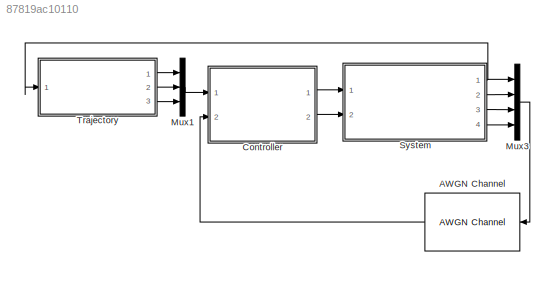
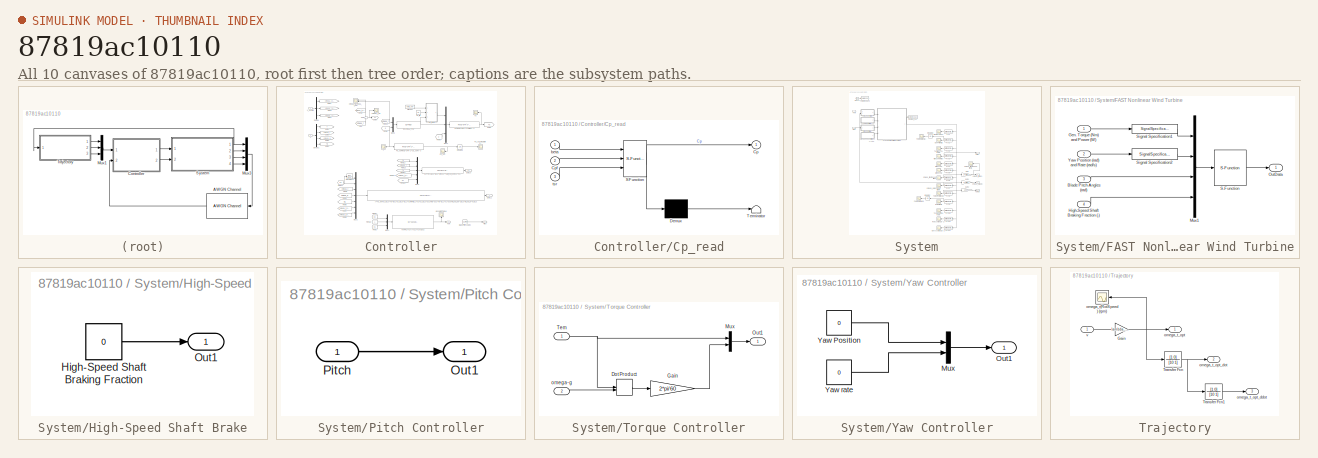
[diagram: thumbnail index - all 10 canvases of the model, root first then tree order]
MODEL slx_87819ac10110
KIND model
CONFIG AbsTol = auto
CONFIG FixedStep = DT
CONFIG MaxStep = DT
CONFIG MinStep = auto
CONFIG RelTol = 1e-3
CONFIG SampleTimeConstraint = Unconstrained
CONFIG Solver = ode4
CONFIG SolverMode = Auto
CONFIG SolverName = ode4
CONFIG StartTime = 0.0
CONFIG StopTime = 600
BLOCK [Reference] AWGN Channel  REF=commchan3/AWGN
Channel
  Ports = [1, 1]
  SourceBlock = commchan3/AWGN\nChannel
  SourceType = AWGN Channel
  UserDataPersistent = on
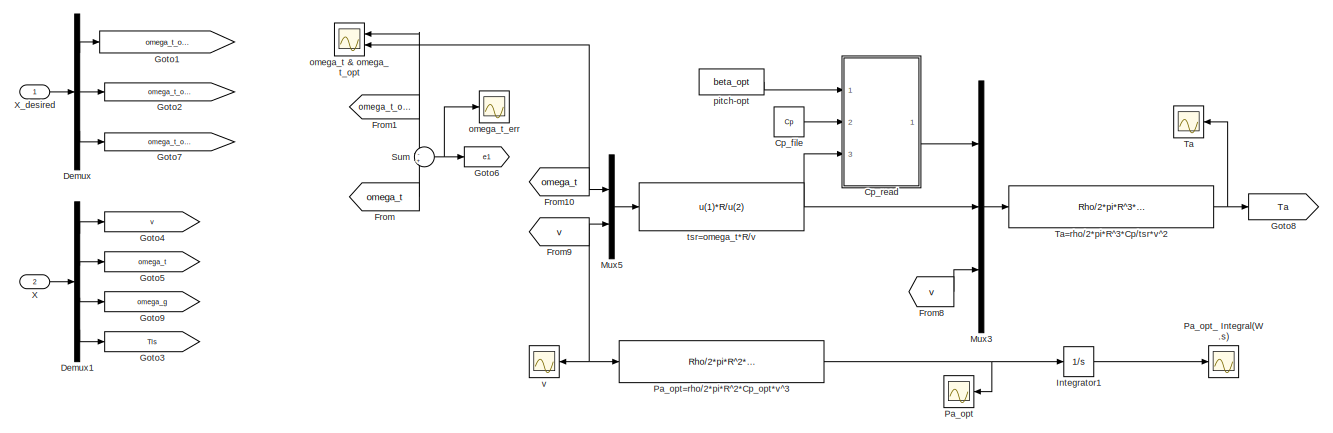
[diagram: Controller - part 1/2, full width, top band]
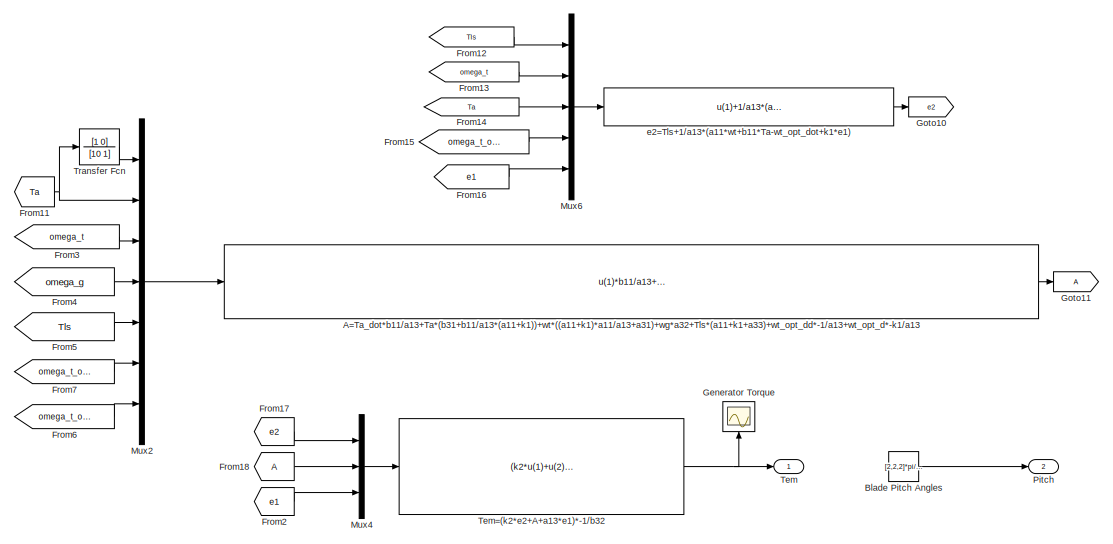
[diagram: Controller - part 2/2, full width, bottom band]
BLOCK [SubSystem] Controller
  Ports = [2, 2]
  RequestExecContextInheritance = off
  Variant = off
BLOCK [Fcn] Controller/A=Ta_dot*b11//a13+Ta*(b31+b11//a13*(a11+k1))+wt*((a11+k1)*a11//a13+a31)+wg*a32+Tls*(a11+k1+a33)+wt_opt_dd*-1//a13+wt_opt_d*-k1//a13
  Expr = u(1)*b11/a13+u(2)*(b31+b11/a13*(a11+k1))+u(3)*((a11+k1)*a11/a13+a31)+u(4)*a32+u(5)*(a11+k1+a33)-1/a13*u(6)-k1/a13*u(7)
BLOCK [Constant] Controller/Blade Pitch Angles
  Value = [2,2,2]*pi/180
BLOCK [Constant] Controller/Cp_file
  Value = Cp
BLOCK [SubSystem] Controller/Cp_read
  ErrorFcn = Stateflow.Translate.translate
  PermitHierarchicalResolution = ExplicitOnly
  Ports = [3, 1]
  RequestExecContextInheritance = off
  SFBlockType = MATLAB Function
  TreatAsAtomicUnit = on
  Variant = off
BLOCK [Demux] Controller/Cp_read/ Demux 
  Outputs = 1
  Ports = [1, 1]
BLOCK [S-Function] Controller/Cp_read/ SFunction 
  EnableBusSupport = on
  FunctionName = sf_sfun
  PortCounts = [3 2]
  Ports = [3, 2]
  SFunctionDeploymentMode = off
  Tag = Stateflow S-Function openloop 1
BLOCK [Terminator] Controller/Cp_read/ Terminator 
BLOCK [Outport] Controller/Cp_read/Cp
  IconDisplay = Port number
BLOCK [Inport] Controller/Cp_read/Cpf
  IconDisplay = Port number
  Port = 2
BLOCK [Inport] Controller/Cp_read/beta
  IconDisplay = Port number
BLOCK [Inport] Controller/Cp_read/tsr
  IconDisplay = Port number
  Port = 3
BLOCK [Demux] Controller/Demux
  DisplayOption = bar
  Outputs = 3
  Ports = [1, 3]
BLOCK [Demux] Controller/Demux1
  DisplayOption = bar
  Ports = [1, 4]
BLOCK [From] Controller/From
  GotoTag = omega_t
BLOCK [From] Controller/From1
  GotoTag = omega_t_opt
BLOCK [From] Controller/From10
  GotoTag = omega_t
BLOCK [From] Controller/From11
  GotoTag = Ta
BLOCK [From] Controller/From12
  GotoTag = Tls
BLOCK [From] Controller/From13
  GotoTag = omega_t
BLOCK [From] Controller/From14
  GotoTag = Ta
BLOCK [From] Controller/From15
  GotoTag = omega_t_opt_dot
BLOCK [From] Controller/From16
  GotoTag = e1
BLOCK [From] Controller/From17
  GotoTag = e2
BLOCK [From] Controller/From18
BLOCK [From] Controller/From2
  GotoTag = e1
BLOCK [From] Controller/From3
  GotoTag = omega_t
BLOCK [From] Controller/From4
  GotoTag = omega_g
BLOCK [From] Controller/From5
  GotoTag = Tls
BLOCK [From] Controller/From6
  GotoTag = omega_t_opt_dot
BLOCK [From] Controller/From7
  GotoTag = omega_t_opt_ddot
BLOCK [From] Controller/From8
  GotoTag = v
BLOCK [From] Controller/From9
  GotoTag = v
BLOCK [Scope] Controller/Generator Torque
  Ports = [1]
  ScopeSpecificationString = Simulink.scopes.TimeScopeBlockCfg('CurrentConfiguration', extmgr.ConfigurationSet(extmgr.Configuration('Core','General UI',true,'FigureColor',[1 1 1]),extmgr.Configuration('Core','Source UI',true),extmgr.Configuration('Sources','WiredSimulink',true,'DataLoggingSaveFormat','StructureWithTime','DataLoggingDecimation','1','DataLoggingDecimateData',true,'DataLoggingVariableName','ScopeData11'),extmgr....<+1909ch>
BLOCK [Goto] Controller/Goto1
  GotoTag = omega_t_opt
BLOCK [Goto] Controller/Goto10
  GotoTag = e2
BLOCK [Goto] Controller/Goto11
BLOCK [Goto] Controller/Goto2
  GotoTag = omega_t_opt_dot
BLOCK [Goto] Controller/Goto3
  GotoTag = Tls
BLOCK [Goto] Controller/Goto4
  GotoTag = v
BLOCK [Goto] Controller/Goto5
  GotoTag = omega_t
BLOCK [Goto] Controller/Goto6
  GotoTag = e1
BLOCK [Goto] Controller/Goto7
  GotoTag = omega_t_opt_ddot
BLOCK [Goto] Controller/Goto8
  GotoTag = Ta
BLOCK [Goto] Controller/Goto9
  GotoTag = omega_g
BLOCK [Integrator] Controller/Integrator1
  Ports = [1, 1]
BLOCK [Mux] Controller/Mux2
  DisplayOption = bar
  Inputs = 7
  Ports = [7, 1]
BLOCK [Mux] Controller/Mux3
  DisplayOption = bar
  Inputs = 3
  Ports = [3, 1]
BLOCK [Mux] Controller/Mux4
  DisplayOption = bar
  Inputs = 3
  Ports = [3, 1]
BLOCK [Mux] Controller/Mux5
  DisplayOption = bar
  Inputs = 2
  Ports = [2, 1]
BLOCK [Mux] Controller/Mux6
  DisplayOption = bar
  Inputs = 5
  Ports = [5, 1]
BLOCK [Scope] Controller/Pa_opt
  Ports = [1]
  ScopeSpecificationString = Simulink.scopes.TimeScopeBlockCfg('CurrentConfiguration', extmgr.ConfigurationSet(extmgr.Configuration('Core','General UI',true,'FigureColor',[1 1 1]),extmgr.Configuration('Core','Source UI',true),extmgr.Configuration('Sources','WiredSimulink',true,'DataLoggingSaveFormat','StructureWithTime','DataLoggingDecimation','1','DataLoggingDecimateData',true,'DataLoggingVariableName','ScopeData6'),extmgr.C...<+1899ch>
BLOCK [Fcn] Controller/Pa_opt=rho//2*pi*R^2*Cp_opt*v^3
  Expr = Rho/2*pi*R^2*0.49*u(1)^3
BLOCK [Scope] Controller/Pa_opt_ Integral(W.s)
  Ports = [1]
  ScopeSpecificationString = Simulink.scopes.TimeScopeBlockCfg('CurrentConfiguration', extmgr.ConfigurationSet(extmgr.Configuration('Core','General UI',true,'FigureColor',[1 1 1]),extmgr.Configuration('Core','Source UI',true),extmgr.Configuration('Sources','WiredSimulink',true,'DataLoggingSaveFormat','StructureWithTime','DataLoggingDecimation','1','DataLoggingDecimateData',true,'DataLoggingVariableName','ScopeData5'),extmgr.C...<+2200ch>
BLOCK [Outport] Controller/Pitch
  IconDisplay = Port number
  Port = 2
BLOCK [Sum] Controller/Sum
  IconShape = round
  InputSameDT = off
  Inputs = -+
  OutDataTypeStr = Inherit: Inherit via internal rule
  Ports = [2, 1]
  SaturateOnIntegerOverflow = off
BLOCK [Scope] Controller/Ta
  Ports = [1]
  ScopeSpecificationString = Simulink.scopes.TimeScopeBlockCfg('CurrentConfiguration', extmgr.ConfigurationSet(extmgr.Configuration('Core','General UI',true),extmgr.Configuration('Core','Source UI',true),extmgr.Configuration('Sources','WiredSimulink',true,'DataLoggingSaveFormat','StructureWithTime','DataLoggingDecimation','1','DataLoggingDecimateData',true,'DataLoggingVariableName','ScopeData10'),extmgr.Configuration('Visuals...<+2061ch>
BLOCK [Fcn] Controller/Ta=rho//2*pi*R^3*Cp//tsr*v^2
  Expr = Rho/2*pi*R^3*u(1)/u(2)*u(3)^2
BLOCK [Outport] Controller/Tem
  IconDisplay = Port number
BLOCK [Fcn] Controller/Tem=(k2*e2+A+a13*e1)*-1//b32
  Expr = (k2*u(1)+u(2)+a13*u(3))*-1/b32
BLOCK [TransferFcn] Controller/Transfer Fcn
  Denominator = [10 1]
  Numerator = [1 0]
BLOCK [Inport] Controller/X
  IconDisplay = Port number
  Port = 2
BLOCK [Inport] Controller/X_desired
  IconDisplay = Port number
BLOCK [Fcn] Controller/e2=Tls+1//a13*(a11*wt+b11*Ta-wt_opt_dot+k1*e1)
  Expr = u(1)+1/a13*(a11*u(2)+b11*u(3)-u(4)+k1*u(5))
BLOCK [Scope] Controller/omega_t & omega_t_opt
  NumInputPorts = 2
  Ports = [2]
  ScopeSpecificationString = Simulink.scopes.TimeScopeBlockCfg('CurrentConfiguration', extmgr.ConfigurationSet(extmgr.Configuration('Core','General UI',true,'FigureColor',[1 1 1]),extmgr.Configuration('Core','Source UI',true),extmgr.Configuration('Sources','WiredSimulink',true,'DataLoggingVariableName','ScopeData2','DataLoggingSaveFormat','Array','DataLoggingDecimation','1','DataLoggingDecimateData',true),extmgr.Configuration...<+1753ch>
BLOCK [Scope] Controller/omega_t_err
  Ports = [1]
  ScopeSpecificationString = Simulink.scopes.TimeScopeBlockCfg('CurrentConfiguration', extmgr.ConfigurationSet(extmgr.Configuration('Core','General UI',true,'FigureColor',[1 1 1]),extmgr.Configuration('Core','Source UI',true),extmgr.Configuration('Sources','WiredSimulink',true,'DataLoggingSaveFormat','StructureWithTime','DataLoggingDecimation','1','DataLoggingDecimateData',true,'DataLoggingVariableName','ScopeData3'),extmgr.C...<+2123ch>
BLOCK [Constant] Controller/pitch-opt
  Value = beta_opt
BLOCK [Fcn] Controller/tsr=omega_t*R//v
  Expr = u(1)*R/u(2)
BLOCK [Scope] Controller/v
  Ports = [1]
  ScopeSpecificationString = Simulink.scopes.TimeScopeBlockCfg('CurrentConfiguration', extmgr.ConfigurationSet(extmgr.Configuration('Core','General UI',true,'FigureColor',[1 1 1]),extmgr.Configuration('Core','Source UI',true),extmgr.Configuration('Sources','WiredSimulink',true,'DataLoggingSaveFormat','StructureWithTime','DataLoggingDecimation','1','DataLoggingDecimateData',true,'DataLoggingVariableName','ScopeData2'),extmgr.C...<+1814ch>
BLOCK [Mux] Mux1
  DisplayOption = bar
  Inputs = 3
  Ports = [3, 1]
BLOCK [Mux] Mux3
  DisplayOption = bar
  Ports = [4, 1]
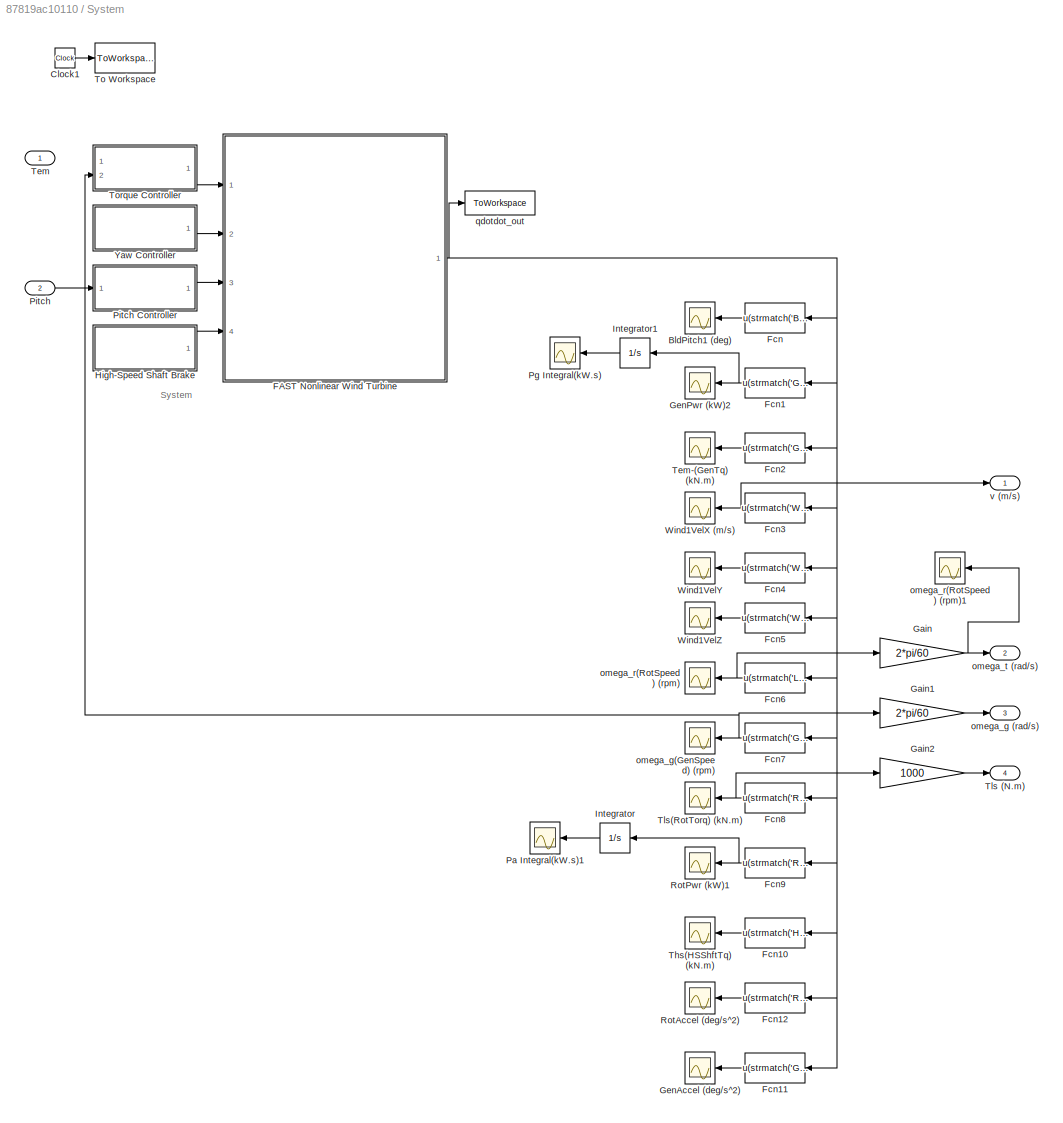
BLOCK [SubSystem] System
  Ports = [2, 4]
  RequestExecContextInheritance = off
  Variant = off
BLOCK [Scope] System/BldPitch1 (deg)
  Ports = [1]
  ScopeSpecificationString = Simulink.scopes.TimeScopeBlockCfg('CurrentConfiguration', extmgr.ConfigurationSet(extmgr.Configuration('Core','General UI',true,'FigureColor',[1 1 1]),extmgr.Configuration('Core','Source UI',true),extmgr.Configuration('Sources','WiredSimulink',true,'DataLoggingSaveFormat','StructureWithTime','DataLoggingDecimation','1','DataLoggingDecimateData',true,'DataLoggingVariableName','ScopeData5'),extmgr.C...<+2088ch>
BLOCK [Clock] System/Clock1
BLOCK [SubSystem] System/FAST Nonlinear Wind Turbine
  Ports = [4, 1]
  RequestExecContextInheritance = off
  Variant = off
BLOCK [Inport] System/FAST Nonlinear Wind Turbine/Blade Pitch Angles (rad)
  IconDisplay = Port number
  Port = 3
BLOCK [Inport] System/FAST Nonlinear Wind Turbine/Gen. Torque (Nm) and Power (W)
  IconDisplay = Port number
BLOCK [Inport] System/FAST Nonlinear Wind Turbine/High-Speed Shaft Braking Fraction (-)
  IconDisplay = Port number
  Port = 4
BLOCK [Mux] System/FAST Nonlinear Wind Turbine/Mux1
  DisplayOption = bar
  Ports = [4, 1]
BLOCK [Outport] System/FAST Nonlinear Wind Turbine/OutData
  IconDisplay = Port number
BLOCK [S-Function] System/FAST Nonlinear Wind Turbine/S-Function
  EnableBusSupport = off
  FunctionName = FAST_SFunc
  Parameters = FAST_InputFileName, TMax, 0
  Ports = [1, 1]
  SFunctionDeploymentMode = off
BLOCK [SignalSpecification] System/FAST Nonlinear Wind Turbine/Signal Specification1
  Dimensions = 2
  OutDataTypeStr = double
  SignalType = real
BLOCK [SignalSpecification] System/FAST Nonlinear Wind Turbine/Signal Specification2
  Dimensions = 2
  OutDataTypeStr = double
  SignalType = real
BLOCK [Inport] System/FAST Nonlinear Wind Turbine/Yaw Position (rad) and Rate (rad//s)
  IconDisplay = Port number
  Port = 2
BLOCK [Fcn] System/Fcn
  Expr = u(strmatch('BldPitch1',OutList))
BLOCK [Fcn] System/Fcn1
  Expr = u(strmatch('GenPwr',OutList))
BLOCK [Fcn] System/Fcn10
  Expr = u(strmatch('HSShftTq',OutList))
BLOCK [Fcn] System/Fcn11
  Expr = u(strmatch('GenAccel',OutList))
BLOCK [Fcn] System/Fcn12
  Expr = u(strmatch('RotAccel',OutList))
BLOCK [Fcn] System/Fcn2
  Expr = u(strmatch('GenTq',OutList))
BLOCK [Fcn] System/Fcn3
  Expr = u(strmatch('Wind1VelX',OutList))
BLOCK [Fcn] System/Fcn4
  Expr = u(strmatch('Wind1VelY',OutList))
BLOCK [Fcn] System/Fcn5
  Expr = u(strmatch('Wind1VelZ',OutList))
BLOCK [Fcn] System/Fcn6
  Expr = u(strmatch('LSSTipVxa',OutList))
BLOCK [Fcn] System/Fcn7
  Expr = u(strmatch('GenSpeed',OutList))
BLOCK [Fcn] System/Fcn8
  Expr = u(strmatch('RotTorq',OutList))
BLOCK [Fcn] System/Fcn9
  Expr = u(strmatch('RotPwr',OutList))
BLOCK [Gain] System/Gain
  Gain = 2*pi/60
  OutDataTypeStr = Inherit: Inherit via internal rule
  ParamDataTypeStr = Inherit: Inherit via internal rule
  SaturateOnIntegerOverflow = off
BLOCK [Gain] System/Gain1
  Gain = 2*pi/60
  OutDataTypeStr = Inherit: Inherit via internal rule
  ParamDataTypeStr = Inherit: Inherit via internal rule
  SaturateOnIntegerOverflow = off
BLOCK [Gain] System/Gain2
  Gain = 1000
  OutDataTypeStr = Inherit: Inherit via internal rule
  ParamDataTypeStr = Inherit: Inherit via internal rule
  SaturateOnIntegerOverflow = off
BLOCK [Scope] System/GenAccel (deg//s^2)
  Ports = [1]
  ScopeSpecificationString = Simulink.scopes.TimeScopeBlockCfg('CurrentConfiguration', extmgr.ConfigurationSet(extmgr.Configuration('Core','General UI',true),extmgr.Configuration('Core','Source UI',true),extmgr.Configuration('Sources','WiredSimulink',true,'DataLoggingSaveFormat','StructureWithTime','DataLoggingDecimation','1','DataLoggingDecimateData',true,'DataLoggingVariableName','ScopeData2'),extmgr.Configuration('Visuals'...<+1955ch>
BLOCK [Scope] System/GenPwr (kW)2
  Ports = [1]
  ScopeSpecificationString = Simulink.scopes.TimeScopeBlockCfg('CurrentConfiguration', extmgr.ConfigurationSet(extmgr.Configuration('Core','General UI',true,'FigureColor',[1 1 1]),extmgr.Configuration('Core','Source UI',true),extmgr.Configuration('Sources','WiredSimulink',true,'DataLoggingSaveFormat','StructureWithTime','DataLoggingDecimation','1','DataLoggingDecimateData',true,'DataLoggingVariableName','ScopeData7'),extmgr.C...<+1853ch>
BLOCK [SubSystem] System/High-Speed Shaft Brake
  Ports = [0, 1]
  RequestExecContextInheritance = off
  Variant = off
BLOCK [Constant] System/High-Speed Shaft Brake/High-Speed Shaft Braking Fraction
  Value = 0
BLOCK [Outport] System/High-Speed Shaft Brake/Out1
  IconDisplay = Port number
BLOCK [Integrator] System/Integrator
  Ports = [1, 1]
BLOCK [Integrator] System/Integrator1
  Ports = [1, 1]
BLOCK [Scope] System/Pa Integral(kW.s)1
  Ports = [1]
  ScopeSpecificationString = Simulink.scopes.TimeScopeBlockCfg('CurrentConfiguration', extmgr.ConfigurationSet(extmgr.Configuration('Core','General UI',true,'FigureColor',[1 1 1]),extmgr.Configuration('Core','Source UI',true),extmgr.Configuration('Sources','WiredSimulink',true,'DataLoggingSaveFormat','StructureWithTime','DataLoggingDecimation','1','DataLoggingDecimateData',true,'DataLoggingVariableName','ScopeData1'),extmgr.C...<+2157ch>
BLOCK [Scope] System/Pg Integral(kW.s)
  Ports = [1]
  ScopeSpecificationString = Simulink.scopes.TimeScopeBlockCfg('CurrentConfiguration', extmgr.ConfigurationSet(extmgr.Configuration('Core','General UI',true,'FigureColor',[1 1 1]),extmgr.Configuration('Core','Source UI',true),extmgr.Configuration('Sources','WiredSimulink',true,'DataLoggingSaveFormat','StructureWithTime','DataLoggingDecimation','1','DataLoggingDecimateData',true,'DataLoggingVariableName','ScopeData3'),extmgr.C...<+2185ch>
BLOCK [Inport] System/Pitch
  IconDisplay = Port number
  Port = 2
BLOCK [SubSystem] System/Pitch Controller
  Ports = [1, 1]
  RequestExecContextInheritance = off
  Variant = off
BLOCK [Outport] System/Pitch Controller/Out1
  IconDisplay = Port number
BLOCK [Inport] System/Pitch Controller/Pitch
  IconDisplay = Port number
BLOCK [Scope] System/RotAccel (deg//s^2)
  Ports = [1]
  ScopeSpecificationString = Simulink.scopes.TimeScopeBlockCfg('CurrentConfiguration', extmgr.ConfigurationSet(extmgr.Configuration('Core','General UI',true),extmgr.Configuration('Core','Source UI',true),extmgr.Configuration('Sources','WiredSimulink',true,'DataLoggingSaveFormat','StructureWithTime','DataLoggingLimitDataPoints',true,'DataLoggingDecimation','1','DataLoggingDecimateData',true,'DataLoggingVariableName','ScopeData...<+2011ch>
BLOCK [Scope] System/RotPwr (kW)1
  Ports = [1]
  ScopeSpecificationString = Simulink.scopes.TimeScopeBlockCfg('CurrentConfiguration', extmgr.ConfigurationSet(extmgr.Configuration('Core','General UI',true,'FigureColor',[1 1 1]),extmgr.Configuration('Core','Source UI',true),extmgr.Configuration('Sources','WiredSimulink',true,'DataLoggingSaveFormat','StructureWithTime','DataLoggingDecimation','1','DataLoggingDecimateData',true,'DataLoggingVariableName','ScopeData4'),extmgr.C...<+1883ch>
BLOCK [Inport] System/Tem
  IconDisplay = Port number
BLOCK [Scope] System/Tem-(GenTq) (kN.m)
  Ports = [1]
  ScopeSpecificationString = Simulink.scopes.TimeScopeBlockCfg('CurrentConfiguration', extmgr.ConfigurationSet(extmgr.Configuration('Core','General UI',true),extmgr.Configuration('Core','Source UI',true),extmgr.Configuration('Sources','WiredSimulink',true,'DataLoggingSaveFormat','StructureWithTime','DataLoggingDecimation','1','DataLoggingDecimateData',true,'DataLoggingVariableName','ScopeData8'),extmgr.Configuration('Visuals'...<+2033ch>
BLOCK [Scope] System/Ths(HSShftTq) (kN.m)
  Ports = [1]
  ScopeSpecificationString = Simulink.scopes.TimeScopeBlockCfg('CurrentConfiguration', extmgr.ConfigurationSet(extmgr.Configuration('Core','General UI',true),extmgr.Configuration('Core','Source UI',true),extmgr.Configuration('Sources','WiredSimulink',true,'DataLoggingSaveFormat','StructureWithTime','DataLoggingDecimation','1','DataLoggingDecimateData',true,'DataLoggingVariableName','ScopeData9'),extmgr.Configuration('Visuals'...<+2003ch>
BLOCK [Outport] System/Tls (N.m)
  IconDisplay = Port number
  Port = 4
BLOCK [Scope] System/Tls(RotTorq) (kN.m)
  Ports = [1]
  ScopeSpecificationString = Simulink.scopes.TimeScopeBlockCfg('CurrentConfiguration', extmgr.ConfigurationSet(extmgr.Configuration('Core','General UI',true),extmgr.Configuration('Core','Source UI',true),extmgr.Configuration('Sources','WiredSimulink',true,'DataLoggingSaveFormat','StructureWithTime','DataLoggingDecimation','1','DataLoggingDecimateData',true,'DataLoggingVariableName','ScopeData10'),extmgr.Configuration('Visuals...<+2034ch>
BLOCK [ToWorkspace] System/To Workspace
  MaxDataPoints = inf
  Ports = [1]
  SampleTime = -1
  VariableName = Time
BLOCK [SubSystem] System/Torque Controller
  Ports = [2, 1]
  RequestExecContextInheritance = off
  Variant = off
BLOCK [DotProduct] System/Torque Controller/Dot Product
  OutDataTypeStr = Inherit: Inherit via internal rule
BLOCK [Gain] System/Torque Controller/Gain
  Gain = 2*pi/60
  OutDataTypeStr = Inherit: Inherit via internal rule
  ParamDataTypeStr = Inherit: Inherit via internal rule
  SaturateOnIntegerOverflow = off
BLOCK [Mux] System/Torque Controller/Mux
  DisplayOption = bar
  Inputs = 2
  Ports = [2, 1]
BLOCK [Outport] System/Torque Controller/Out1
  IconDisplay = Port number
BLOCK [Inport] System/Torque Controller/Tem
  IconDisplay = Port number
BLOCK [Inport] System/Torque Controller/omega-g
  IconDisplay = Port number
  Port = 2
BLOCK [Scope] System/Wind1VelX (m//s)
  Ports = [1]
  ScopeSpecificationString = Simulink.scopes.TimeScopeBlockCfg('CurrentConfiguration', extmgr.ConfigurationSet(extmgr.Configuration('Core','General UI',true,'FigureColor',[1 1 1]),extmgr.Configuration('Core','Source UI',true),extmgr.Configuration('Sources','WiredSimulink',true,'DataLoggingSaveFormat','StructureWithTime','DataLoggingDecimation','1','DataLoggingDecimateData',true,'DataLoggingVariableName','ScopeData11'),extmgr....<+1688ch>
BLOCK [Scope] System/Wind1VelY
  Ports = [1]
  ScopeSpecificationString = Simulink.scopes.TimeScopeBlockCfg('CurrentConfiguration', extmgr.ConfigurationSet(extmgr.Configuration('Core','General UI',true),extmgr.Configuration('Core','Source UI',true),extmgr.Configuration('Sources','WiredSimulink',true,'DataLoggingSaveFormat','StructureWithTime','DataLoggingLimitDataPoints',true,'DataLoggingDecimation','1','DataLoggingDecimateData',true,'DataLoggingVariableName','ScopeData...<+1723ch>
BLOCK [Scope] System/Wind1VelZ
  Ports = [1]
  ScopeSpecificationString = Simulink.scopes.TimeScopeBlockCfg('CurrentConfiguration', extmgr.ConfigurationSet(extmgr.Configuration('Core','General UI',true),extmgr.Configuration('Core','Source UI',true),extmgr.Configuration('Sources','WiredSimulink',true,'DataLoggingSaveFormat','StructureWithTime','DataLoggingLimitDataPoints',true,'DataLoggingDecimation','1','DataLoggingDecimateData',true,'DataLoggingVariableName','ScopeData...<+1723ch>
BLOCK [SubSystem] System/Yaw Controller
  Ports = [0, 1]
  RequestExecContextInheritance = off
  Variant = off
BLOCK [Mux] System/Yaw Controller/Mux
  DisplayOption = bar
  Inputs = 2
  Ports = [2, 1]
BLOCK [Outport] System/Yaw Controller/Out1
  IconDisplay = Port number
BLOCK [Constant] System/Yaw Controller/Yaw Position
  Value = 0
BLOCK [Constant] System/Yaw Controller/Yaw rate
  Value = 0
BLOCK [Outport] System/omega_g (rad//s)
  IconDisplay = Port number
  Port = 3
BLOCK [Scope] System/omega_g(GenSpeed) (rpm)
  Ports = [1]
  ScopeSpecificationString = Simulink.scopes.TimeScopeBlockCfg('CurrentConfiguration', extmgr.ConfigurationSet(extmgr.Configuration('Core','General UI',true),extmgr.Configuration('Core','Source UI',true),extmgr.Configuration('Sources','WiredSimulink',true,'DataLoggingSaveFormat','StructureWithTime','DataLoggingDecimation','1','DataLoggingDecimateData',true,'DataLoggingVariableName','ScopeData14'),extmgr.Configuration('Visuals...<+2032ch>
BLOCK [Scope] System/omega_r(RotSpeed) (rpm)
  Ports = [1]
  ScopeSpecificationString = Simulink.scopes.TimeScopeBlockCfg('CurrentConfiguration', extmgr.ConfigurationSet(extmgr.Configuration('Core','General UI',true),extmgr.Configuration('Core','Source UI',true),extmgr.Configuration('Sources','WiredSimulink',true,'DataLoggingSaveFormat','StructureWithTime','DataLoggingDecimation','1','DataLoggingDecimateData',true),extmgr.Configuration('Visuals','Time Domain',true,'SerializedDisplays...<+1941ch>
BLOCK [Scope] System/omega_r(RotSpeed) (rpm)1
  Ports = [1]
  ScopeSpecificationString = Simulink.scopes.TimeScopeBlockCfg('CurrentConfiguration', extmgr.ConfigurationSet(extmgr.Configuration('Core','General UI',true,'FigureColor',[1 1 1]),extmgr.Configuration('Core','Source UI',true),extmgr.Configuration('Sources','WiredSimulink',true,'DataLoggingSaveFormat','StructureWithTime','DataLoggingDecimation','1','DataLoggingDecimateData',true,'DataLoggingVariableName','ScopeData1'),extmgr.C...<+1806ch>
BLOCK [Outport] System/omega_t (rad//s)
  IconDisplay = Port number
  Port = 2
BLOCK [ToWorkspace] System/qdotdot_out
  MaxDataPoints = inf
  Ports = [1]
  SampleTime = -1
  VariableName = OutData
BLOCK [Outport] System/v (m//s)
  IconDisplay = Port number
BLOCK [SubSystem] Trajectory
  Ports = [1, 3]
  RequestExecContextInheritance = off
  Variant = off
BLOCK [Gain] Trajectory/Gain
  Gain = lambda_opt/R
  OutDataTypeStr = Inherit: Inherit via internal rule
  ParamDataTypeStr = Inherit: Inherit via internal rule
  SaturateOnIntegerOverflow = off
BLOCK [TransferFcn] Trajectory/Transfer Fcn
  Denominator = [10 1]
  Numerator = [1 0]
BLOCK [TransferFcn] Trajectory/Transfer Fcn1
  Denominator = [10 1]
  Numerator = [1 0]
BLOCK [Scope] Trajectory/omega_r(RotSpeed) (rpm)
  Ports = [1]
  ScopeSpecificationString = Simulink.scopes.TimeScopeBlockCfg('CurrentConfiguration', extmgr.ConfigurationSet(extmgr.Configuration('Core','General UI',true),extmgr.Configuration('Core','Source UI',true),extmgr.Configuration('Sources','WiredSimulink',true,'DataLoggingSaveFormat','StructureWithTime','DataLoggingDecimation','1','DataLoggingDecimateData',true,'DataLoggingVariableName','ScopeData12'),extmgr.Configuration('Visuals...<+1973ch>
BLOCK [Outport] Trajectory/omega_t_opt
  IconDisplay = Port number
BLOCK [Outport] Trajectory/omega_t_opt_ddot
  IconDisplay = Port number
  Port = 3
BLOCK [Outport] Trajectory/omega_t_opt_dot
  IconDisplay = Port number
  Port = 2
BLOCK [Inport] Trajectory/v
  IconDisplay = Port number
ANNOTATION System: System
LINE AWGN Channel:1 -> Controller:2
LINE Controller/A=Ta_dot*b11//a13+Ta*(b31+b11//a13*(a11+k1))+wt*((a11+k1)*a11//a13+a31)+wg*a32+Tls*(a11+k1+a33)+wt_opt_dd*-1//a13+wt_opt_d*-k1//a13:1 -> Controller/Goto11:1
LINE Controller/Blade Pitch Angles:1 -> Controller/Pitch:1
LINE Controller/Cp_file:1 -> Controller/Cp_read:2
LINE Controller/Cp_read:1 -> Controller/Mux3:1
LINE Controller/Demux1:1 -> Controller/Goto4:1
LINE Controller/Demux1:2 -> Controller/Goto5:1
LINE Controller/Demux1:3 -> Controller/Goto9:1
LINE Controller/Demux1:4 -> Controller/Goto3:1
LINE Controller/Demux:1 -> Controller/Goto1:1
LINE Controller/Demux:2 -> Controller/Goto2:1
LINE Controller/Demux:3 -> Controller/Goto7:1
NET Controller/From10:1 -> Controller/Mux5:1, Controller/omega_t & omega_t_opt:2
NET Controller/From11:1 -> Controller/Mux2:2, Controller/Transfer Fcn:1
LINE Controller/From12:1 -> Controller/Mux6:1
LINE Controller/From13:1 -> Controller/Mux6:2
LINE Controller/From14:1 -> Controller/Mux6:3
LINE Controller/From15:1 -> Controller/Mux6:4
LINE Controller/From16:1 -> Controller/Mux6:5
LINE Controller/From17:1 -> Controller/Mux4:1
LINE Controller/From18:1 -> Controller/Mux4:2
NET Controller/From1:1 -> Controller/Sum:1, Controller/omega_t & omega_t_opt:1
LINE Controller/From2:1 -> Controller/Mux4:3
LINE Controller/From3:1 -> Controller/Mux2:3
LINE Controller/From4:1 -> Controller/Mux2:4
LINE Controller/From5:1 -> Controller/Mux2:5
LINE Controller/From6:1 -> Controller/Mux2:7
LINE Controller/From7:1 -> Controller/Mux2:6
LINE Controller/From8:1 -> Controller/Mux3:3
NET Controller/From9:1 -> Controller/Mux5:2, Controller/Pa_opt=rho//2*pi*R^2*Cp_opt*v^3:1, Controller/v:1
LINE Controller/From:1 -> Controller/Sum:2
LINE Controller/Integrator1:1 -> Controller/Pa_opt_ Integral(W.s):1
LINE Controller/Mux2:1 -> Controller/A=Ta_dot*b11//a13+Ta*(b31+b11//a13*(a11+k1))+wt*((a11+k1)*a11//a13+a31)+wg*a32+Tls*(a11+k1+a33)+wt_opt_dd*-1//a13+wt_opt_d*-k1//a13:1
LINE Controller/Mux3:1 -> Controller/Ta=rho//2*pi*R^3*Cp//tsr*v^2:1
LINE Controller/Mux4:1 -> Controller/Tem=(k2*e2+A+a13*e1)*-1//b32:1
LINE Controller/Mux5:1 -> Controller/tsr=omega_t*R//v:1
LINE Controller/Mux6:1 -> Controller/e2=Tls+1//a13*(a11*wt+b11*Ta-wt_opt_dot+k1*e1):1
NET Controller/Pa_opt=rho//2*pi*R^2*Cp_opt*v^3:1 -> Controller/Integrator1:1, Controller/Pa_opt:1
NET Controller/Sum:1 -> Controller/Goto6:1, Controller/omega_t_err:1
NET Controller/Ta=rho//2*pi*R^3*Cp//tsr*v^2:1 -> Controller/Goto8:1, Controller/Ta:1
NET Controller/Tem=(k2*e2+A+a13*e1)*-1//b32:1 -> Controller/Generator Torque:1, Controller/Tem:1
LINE Controller/Transfer Fcn:1 -> Controller/Mux2:1
LINE Controller/X:1 -> Controller/Demux1:1
LINE Controller/X_desired:1 -> Controller/Demux:1
LINE Controller/e2=Tls+1//a13*(a11*wt+b11*Ta-wt_opt_dot+k1*e1):1 -> Controller/Goto10:1
LINE Controller/pitch-opt:1 -> Controller/Cp_read:1
NET Controller/tsr=omega_t*R//v:1 -> Controller/Cp_read:3, Controller/Mux3:2
LINE Controller:1 -> System:1
LINE Controller:2 -> System:2
LINE Mux1:1 -> Controller:1
LINE Mux3:1 -> AWGN Channel:1
LINE System/Clock1:1 -> System/To Workspace:1
LINE System/FAST Nonlinear Wind Turbine/Blade Pitch Angles (rad):1 -> System/FAST Nonlinear Wind Turbine/Mux1:3
LINE System/FAST Nonlinear Wind Turbine/Gen. Torque (Nm) and Power (W):1 -> System/FAST Nonlinear Wind Turbine/Signal Specification1:1
LINE System/FAST Nonlinear Wind Turbine/High-Speed Shaft Braking Fraction (-):1 -> System/FAST Nonlinear Wind Turbine/Mux1:4
LINE System/FAST Nonlinear Wind Turbine/Mux1:1 -> System/FAST Nonlinear Wind Turbine/S-Function:1
LINE System/FAST Nonlinear Wind Turbine/S-Function:1 -> System/FAST Nonlinear Wind Turbine/OutData:1
LINE System/FAST Nonlinear Wind Turbine/Signal Specification1:1 -> System/FAST Nonlinear Wind Turbine/Mux1:1
LINE System/FAST Nonlinear Wind Turbine/Signal Specification2:1 -> System/FAST Nonlinear Wind Turbine/Mux1:2
LINE System/FAST Nonlinear Wind Turbine/Yaw Position (rad) and Rate (rad//s):1 -> System/FAST Nonlinear Wind Turbine/Signal Specification2:1
NET System/FAST Nonlinear Wind Turbine:1 -> System/Fcn10:1, System/Fcn11:1, System/Fcn12:1, System/Fcn1:1, System/Fcn2:1, System/Fcn3:1, System/Fcn4:1, System/Fcn5:1, System/Fcn6:1, System/Fcn7:1, System/Fcn8:1, System/Fcn9:1, System/Fcn:1, System/qdotdot_out:1
LINE System/Fcn10:1 -> System/Ths(HSShftTq) (kN.m):1
LINE System/Fcn11:1 -> System/GenAccel (deg//s^2):1
LINE System/Fcn12:1 -> System/RotAccel (deg//s^2):1
NET System/Fcn1:1 -> System/GenPwr (kW)2:1, System/Integrator1:1
LINE System/Fcn2:1 -> System/Tem-(GenTq) (kN.m):1
NET System/Fcn3:1 -> System/Wind1VelX (m//s):1, System/v (m//s):1
LINE System/Fcn4:1 -> System/Wind1VelY:1
LINE System/Fcn5:1 -> System/Wind1VelZ:1
NET System/Fcn6:1 -> System/Gain:1, System/omega_r(RotSpeed) (rpm):1
NET System/Fcn7:1 -> System/Gain1:1, System/Torque Controller:2, System/omega_g(GenSpeed) (rpm):1
NET System/Fcn8:1 -> System/Gain2:1, System/Tls(RotTorq) (kN.m):1
NET System/Fcn9:1 -> System/Integrator:1, System/RotPwr (kW)1:1
LINE System/Fcn:1 -> System/BldPitch1 (deg):1
LINE System/Gain1:1 -> System/omega_g (rad//s):1
LINE System/Gain2:1 -> System/Tls (N.m):1
NET System/Gain:1 -> System/omega_r(RotSpeed) (rpm)1:1, System/omega_t (rad//s):1
LINE System/High-Speed Shaft Brake/High-Speed Shaft Braking Fraction:1 -> System/High-Speed Shaft Brake/Out1:1
LINE System/High-Speed Shaft Brake:1 -> System/FAST Nonlinear Wind Turbine:4
LINE System/Integrator1:1 -> System/Pg Integral(kW.s):1
LINE System/Integrator:1 -> System/Pa Integral(kW.s)1:1
LINE System/Pitch Controller/Pitch:1 -> System/Pitch Controller/Out1:1
LINE System/Pitch Controller:1 -> System/FAST Nonlinear Wind Turbine:3
LINE System/Pitch:1 -> System/Pitch Controller:1
LINE System/Torque Controller/Dot Product:1 -> System/Torque Controller/Gain:1
LINE System/Torque Controller/Gain:1 -> System/Torque Controller/Mux:2
LINE System/Torque Controller/Mux:1 -> System/Torque Controller/Out1:1
NET System/Torque Controller/Tem:1 -> System/Torque Controller/Dot Product:1, System/Torque Controller/Mux:1
LINE System/Torque Controller/omega-g:1 -> System/Torque Controller/Dot Product:2
LINE System/Torque Controller:1 -> System/FAST Nonlinear Wind Turbine:1
LINE System/Yaw Controller/Mux:1 -> System/Yaw Controller/Out1:1
LINE System/Yaw Controller/Yaw Position:1 -> System/Yaw Controller/Mux:1
LINE System/Yaw Controller/Yaw rate:1 -> System/Yaw Controller/Mux:2
LINE System/Yaw Controller:1 -> System/FAST Nonlinear Wind Turbine:2
NET System:1 -> Mux3:1, Trajectory:1
LINE System:2 -> Mux3:2
LINE System:3 -> Mux3:3
LINE System:4 -> Mux3:4
NET Trajectory/Gain:1 -> Trajectory/Transfer Fcn:1, Trajectory/omega_r(RotSpeed) (rpm):1, Trajectory/omega_t_opt:1
LINE Trajectory/Transfer Fcn1:1 -> Trajectory/omega_t_opt_ddot:1
NET Trajectory/Transfer Fcn:1 -> Trajectory/Transfer Fcn1:1, Trajectory/omega_t_opt_dot:1
LINE Trajectory/v:1 -> Trajectory/Gain:1
LINE Trajectory:1 -> Mux1:1
LINE Trajectory:2 -> Mux1:2
LINE Trajectory:3 -> Mux1:3
note: NET lines group one-source signal fan-out (src -> all destinations, sorted); 1:1 wires keep LINE
CHART Controller/Cp_read states=1 transitions=1
  STATE_LABEL 'eML_blk_kernel()'
  STATE_LABEL 'SCRIPT:\nfunction Cp = fcn(beta,Cpf,tsr)\n\n    if (tsr>19 || beta>90) \n        Cp=0;\n    else\n    beta1=floor(beta)+1;\n    tsr1=floor(tsr*10);\n    beta2=beta1+1;\n    tsr2=tsr1+1;\n    betap=beta-floor(beta);\n    tsrp=tsr*10-floor(tsr*10);\n    Cp1=Cpf(beta1,tsr1)+betap*(Cpf(beta2,tsr1)-Cpf(beta1,tsr1));\n    Cp2=Cpf(beta1,tsr2)+betap*(Cpf(beta2,tsr2)-Cpf(beta1,tsr2));\n    Cp=tsrp*(Cp2-Cp1)+Cp1;\n    end...<+4ch>'
